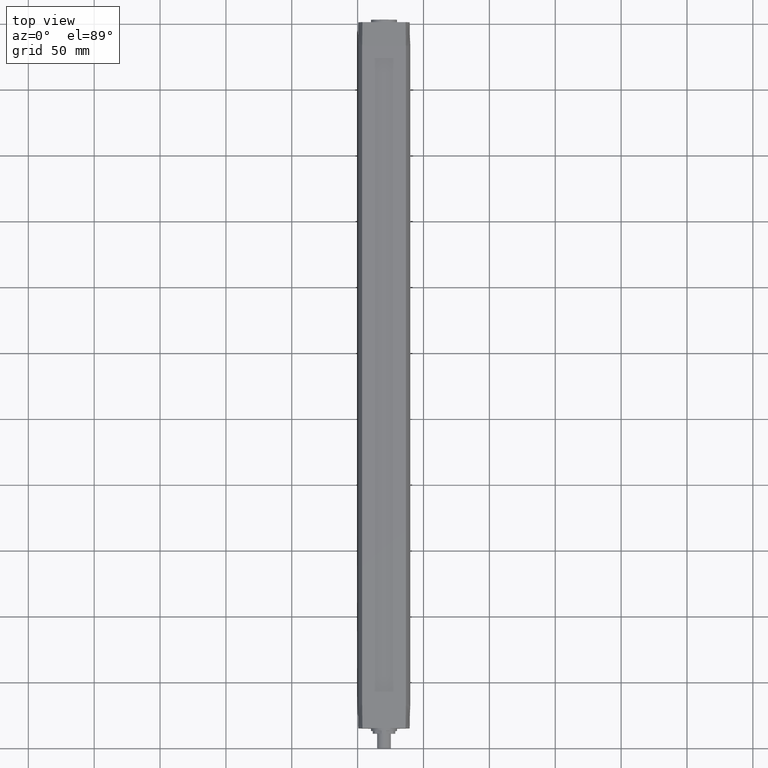
[diagram: clean part render]
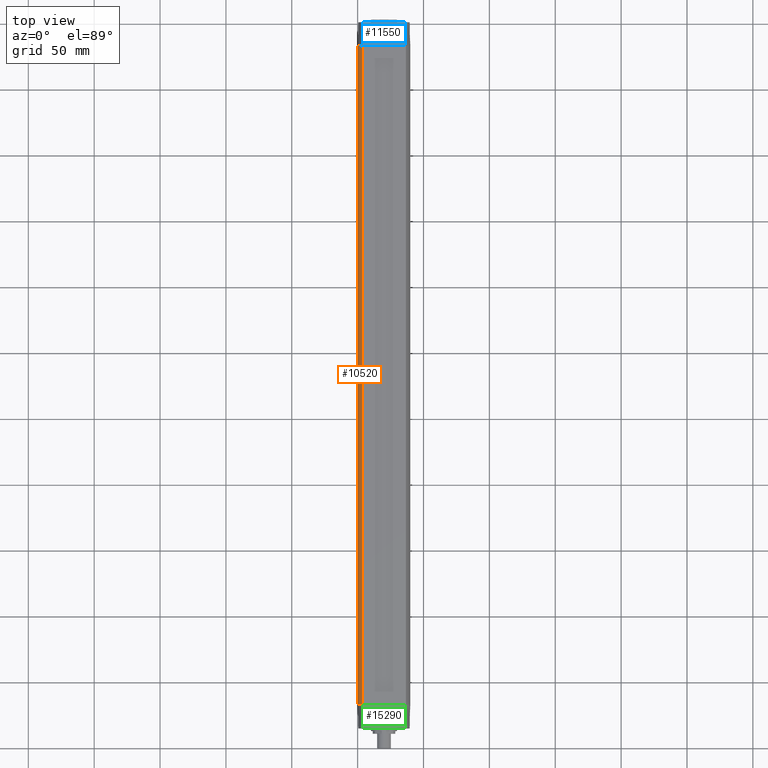
[diagram: same view with three faces highlighted in distinct colors, each labeled with its STEP entity id]
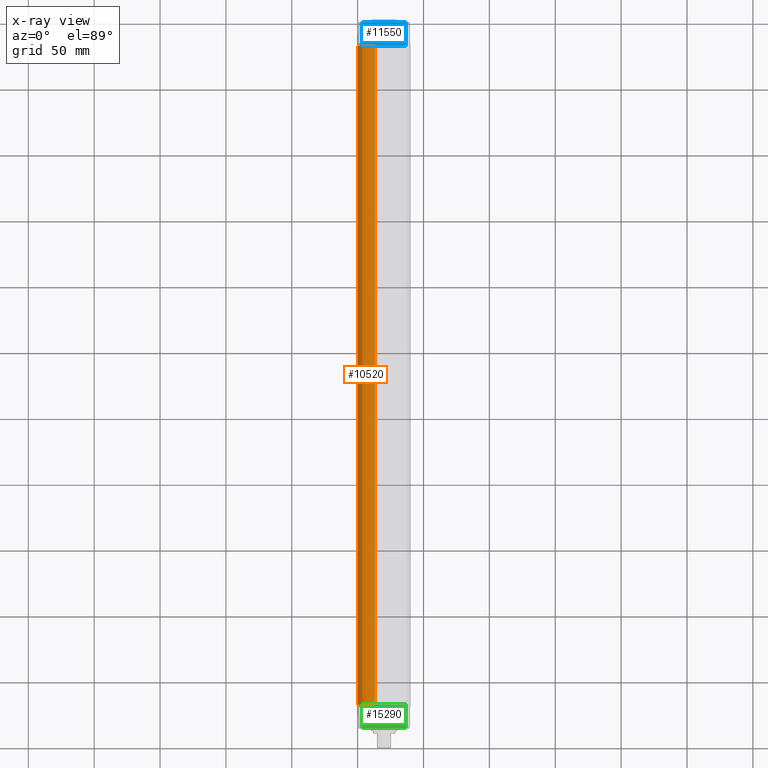
[diagram: x-ray of the same camera — body ghosted, the three highlighted faces saturated]
A machine part, top view with three faces highlighted in distinct colors.
The next image is the same camera in x-ray (body ghosted, the three faces saturated) — at least one of them is partly hidden behind the body in this view.
Their STEP definitions:

[orange] entity #10520 — the highlighted cylindrical surface (edge-blend (fillet) strip) has radius 20 mm, axis along (0, 1, 0).
#7090=CARTESIAN_POINT('',(16.5698521417666,11.1999999999999,-250.));
#7100=VERTEX_POINT('',#7090);
#7130=CARTESIAN_POINT('',(16.5698521417664,11.2,-75.));
#7140=DIRECTION('',(0.,0.,1.));
#7150=VECTOR('',#7140,1.);
#7160=LINE('',#7130,#7150);
#7170=CARTESIAN_POINT('',(16.5698521417664,11.2,250.));
#7180=VERTEX_POINT('',#7170);
#7190=EDGE_CURVE('',#7100,#7180,#7160,.T.);
#10200=CARTESIAN_POINT('',(0.,-1.06581410364015E-14,-75.));
#10210=DIRECTION('',(0.,0.,1.));
#10220=DIRECTION('',(1.,0.,0.));
#10230=AXIS2_PLACEMENT_3D('',#10200,#10210,#10220);
#10240=CYLINDRICAL_SURFACE('',#10230,20.);
#10250=CARTESIAN_POINT('',(0.,-1.06581410364015E-14,-250.));
#10260=DIRECTION('',(0.,0.,-1.));
#10270=DIRECTION('',(1.,-2.44929359829471E-16,0.));
#10280=AXIS2_PLACEMENT_3D('',#10250,#10260,#10270);
#10290=CIRCLE('',#10280,20.);
#10300=CARTESIAN_POINT('',(6.95970545353752,-18.75,-250.));
#10310=VERTEX_POINT('',#10300);
#10320=EDGE_CURVE('',#7100,#10310,#10290,.T.);
#10330=ORIENTED_EDGE('',*,*,#10320,.F.);
#10340=CARTESIAN_POINT('',(6.95970545353754,-18.75,75.));
#10350=DIRECTION('',(0.,0.,-1.));
#10360=VECTOR('',#10350,1.);
#10370=LINE('',#10340,#10360);
#10380=CARTESIAN_POINT('',(6.95970545353751,-18.75,250.));
#10390=VERTEX_POINT('',#10380);
#10400=EDGE_CURVE('',#10390,#10310,#10370,.T.);
#10410=ORIENTED_EDGE('',*,*,#10400,.T.);
#10420=CARTESIAN_POINT('',(0.,-1.06581410364015E-14,250.));
#10430=DIRECTION('',(0.,0.,1.));
#10440=DIRECTION('',(0.347985272676877,-0.9375,0.));
#10450=AXIS2_PLACEMENT_3D('',#10420,#10430,#10440);
#10460=CIRCLE('',#10450,20.);
#10470=EDGE_CURVE('',#10390,#7180,#10460,.T.);
#10480=ORIENTED_EDGE('',*,*,#10470,.F.);
#10490=ORIENTED_EDGE('',*,*,#7190,.T.);
#10500=EDGE_LOOP('',(#10490,#10480,#10410,#10330));
#10510=FACE_OUTER_BOUND('',#10500,.T.);
#10520=ADVANCED_FACE('',(#10510),#10240,.T.);

[blue] entity #11550 — the highlighted planar face has unit normal (0, 0.0244, 0.9997).
#5550=CARTESIAN_POINT('',(-16.5698521417666,11.1999999999999,250.));
#5560=VERTEX_POINT('',#5550);
#7170=CARTESIAN_POINT('',(16.5698521417664,11.2,250.));
#7180=VERTEX_POINT('',#7170);
#7210=CARTESIAN_POINT('',(-16.5698521417664,11.2,250.));
#7220=DIRECTION('',(1.,0.,0.));
#7230=VECTOR('',#7220,1.);
#7240=LINE('',#7210,#7230);
#7250=EDGE_CURVE('',#5560,#7180,#7240,.T.);
#11190=CARTESIAN_POINT('',(16.5698521417664,11.2,250.));
#11200=DIRECTION('',(0.,0.999701489781183,0.0244321781526531));
#11210=DIRECTION('',(0.,0.0244321781526531,-0.999701489781183));
#11220=AXIS2_PLACEMENT_3D('',#11190,#11200,#11210);
#11230=PLANE('',#11220);
#11240=CARTESIAN_POINT('',(16.5698521417664,11.2,250.));
#11250=CARTESIAN_POINT('',(16.5439069962023,11.1511469061599,
251.998942148639));
#11260=CARTESIAN_POINT('',(16.4917309964872,11.0534235313816,
255.997529697479));
#11270=CARTESIAN_POINT('',(16.413302208988,10.9067866877431,
261.99752978451));
#11280=CARTESIAN_POINT('',(16.3608983060847,10.8089942744989,
265.998942208679));
#11290=CARTESIAN_POINT('',(16.3345515631189,10.7600894754653,268.));
#11300=B_SPLINE_CURVE_WITH_KNOTS('',3,(#11240,#11250,#11260,#11270,
#11280,#11290),.UNSPECIFIED.,.F.,.F.,(4,1,1,4),(0.,0.333333333333333,
0.666666666666667,1.),.UNSPECIFIED.);
#11310=CARTESIAN_POINT('',(16.3345515631189,10.7600894754653,268.));
#11320=VERTEX_POINT('',#11310);
#11330=EDGE_CURVE('',#7180,#11320,#11300,.T.);
#11340=ORIENTED_EDGE('',*,*,#11330,.F.);
#11350=CARTESIAN_POINT('',(-16.3345515631189,10.7600894754653,268.));
#11360=DIRECTION('',(1.,0.,0.));
#11370=VECTOR('',#11360,1.);
#11380=LINE('',#11350,#11370);
#11390=CARTESIAN_POINT('',(-16.3345515631189,10.7600894754653,268.));
#11400=VERTEX_POINT('',#11390);
#11410=EDGE_CURVE('',#11400,#11320,#11380,.T.);
#11420=ORIENTED_EDGE('',*,*,#11410,.T.);
#11430=CARTESIAN_POINT('',(-16.3345515631189,10.7600894754653,268.));
#11440=CARTESIAN_POINT('',(-16.3608983060847,10.8089942744988,
265.998942208682));
#11450=CARTESIAN_POINT('',(-16.4133022089879,10.9067866877429,
261.997529784517));
#11460=CARTESIAN_POINT('',(-16.4917309964871,11.0534235313815,
255.997529697487));
#11470=CARTESIAN_POINT('',(-16.5439069962023,11.1511469061598,
251.998942148642));
#11480=CARTESIAN_POINT('',(-16.5698521417664,11.2,250.));
#11490=B_SPLINE_CURVE_WITH_KNOTS('',3,(#11430,#11440,#11450,#11460,
#11470,#11480),.UNSPECIFIED.,.F.,.F.,(4,1,1,4),(0.,0.333333333333333,
0.666666666666667,1.),.UNSPECIFIED.);
#11500=EDGE_CURVE('',#11400,#5560,#11490,.T.);
#11510=ORIENTED_EDGE('',*,*,#11500,.F.);
#11520=ORIENTED_EDGE('',*,*,#7250,.F.);
#11530=EDGE_LOOP('',(#11520,#11510,#11420,#11340));
#11540=FACE_OUTER_BOUND('',#11530,.T.);
#11550=ADVANCED_FACE('',(#11540),#11230,.T.);

[green] entity #15290 — the highlighted planar face has unit normal (0, -0.0244, 0.9997).
#4660=CARTESIAN_POINT('',(16.3345515631189,10.7600894754653,-268.));
#4670=VERTEX_POINT('',#4660);
#4720=CARTESIAN_POINT('',(16.3345515631189,10.7600894754653,-268.));
#4730=DIRECTION('',(-1.,0.,0.));
#4740=VECTOR('',#4730,1.);
#4750=LINE('',#4720,#4740);
#4760=CARTESIAN_POINT('',(-16.3345515631189,10.7600894754653,-268.));
#4770=VERTEX_POINT('',#4760);
#4780=EDGE_CURVE('',#4670,#4770,#4750,.T.);
#5470=CARTESIAN_POINT('',(-16.5698521417666,11.1999999999999,-250.));
#5480=VERTEX_POINT('',#5470);
#7050=CARTESIAN_POINT('',(16.5698521417664,11.2,-250.));
#7060=DIRECTION('',(-1.,0.,0.));
#7070=VECTOR('',#7060,1.);
#7080=LINE('',#7050,#7070);
#7090=CARTESIAN_POINT('',(16.5698521417666,11.1999999999999,-250.));
#7100=VERTEX_POINT('',#7090);
#7110=EDGE_CURVE('',#7100,#5480,#7080,.T.);
#14880=CARTESIAN_POINT('',(16.3345515631189,10.7600894754653,-268.));
#14890=CARTESIAN_POINT('',(16.3608983060848,10.808994274499,
-265.998942208673));
#14900=CARTESIAN_POINT('',(16.4133022089882,10.9067866877434,
-261.997529784498));
#14910=CARTESIAN_POINT('',(16.4917309964874,11.0534235313819,
-255.997529697467));
#14920=CARTESIAN_POINT('',(16.5439069962024,11.15114690616,
-251.998942148634));
#14930=CARTESIAN_POINT('',(16.5698521417664,11.2,-250.));
#14940=B_SPLINE_CURVE_WITH_KNOTS('',3,(#14880,#14890,#14900,#14910,
#14920,#14930),.UNSPECIFIED.,.F.,.F.,(4,1,1,4),(0.,0.333333333333333,
0.666666666666667,1.),.UNSPECIFIED.);
#14950=EDGE_CURVE('',#4670,#7100,#14940,.T.);
#15100=CARTESIAN_POINT('',(16.5698521417664,11.2,-250.));
#15110=DIRECTION('',(0.,0.999701489781183,-0.0244321781526531));
#15120=DIRECTION('',(0.,0.0244321781526531,0.999701489781183));
#15130=AXIS2_PLACEMENT_3D('',#15100,#15110,#15120);
#15140=PLANE('',#15130);
#15150=CARTESIAN_POINT('',(-16.5698521417664,11.2,-250.));
#15160=CARTESIAN_POINT('',(-16.5439069962023,11.1511469061598,
-251.998942148642));
#15170=CARTESIAN_POINT('',(-16.4917309964871,11.0534235313814,
-255.997529697487));
#15180=CARTESIAN_POINT('',(-16.4133022089879,10.9067866877429,
-261.997529784517));
#15190=CARTESIAN_POINT('',(-16.3608983060847,10.8089942744988,
-265.998942208682));
#15200=CARTESIAN_POINT('',(-16.3345515631189,10.7600894754653,-268.));
#15210=B_SPLINE_CURVE_WITH_KNOTS('',3,(#15150,#15160,#15170,#15180,
#15190,#15200),.UNSPECIFIED.,.F.,.F.,(4,1,1,4),(0.,0.333333333333333,
0.666666666666667,1.),.UNSPECIFIED.);
#15220=EDGE_CURVE('',#5480,#4770,#15210,.T.);
#15230=ORIENTED_EDGE('',*,*,#15220,.F.);
#15240=ORIENTED_EDGE('',*,*,#4780,.T.);
#15250=ORIENTED_EDGE('',*,*,#14950,.F.);
#15260=ORIENTED_EDGE('',*,*,#7110,.F.);
#15270=EDGE_LOOP('',(#15260,#15250,#15240,#15230));
#15280=FACE_OUTER_BOUND('',#15270,.T.);
#15290=ADVANCED_FACE('',(#15280),#15140,.T.);